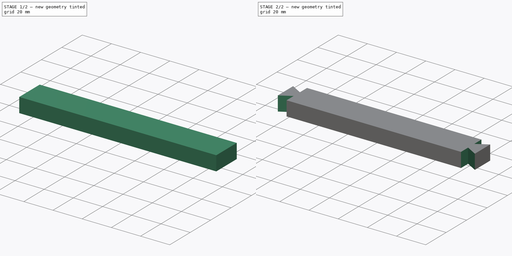
[diagram: build sequence overview — one tinted view per stage of 2, left to right]
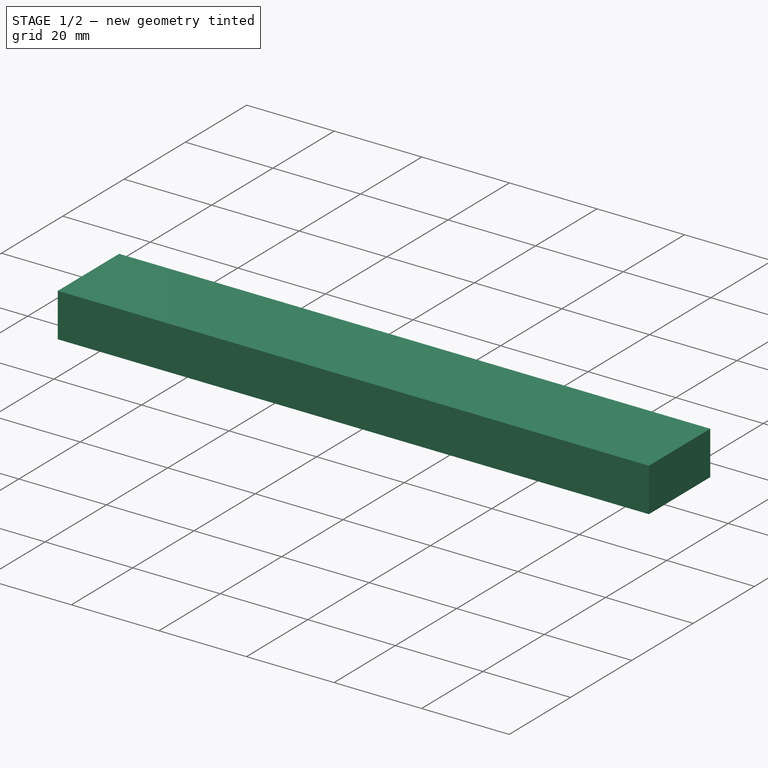
[diagram: stage 1 of 2 — iso view after this stage's code; geometry added in this stage tinted green]
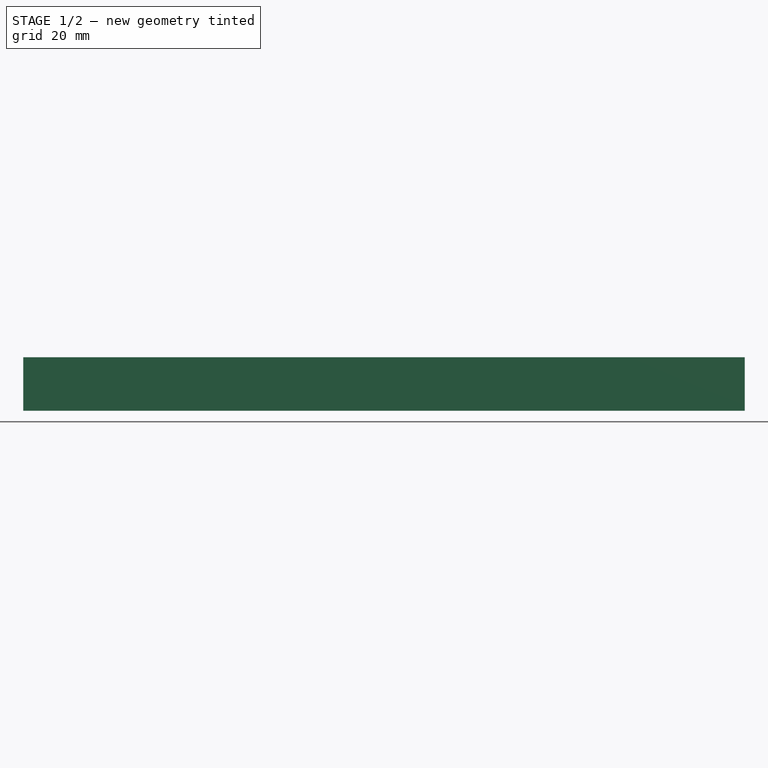
[diagram: stage 1 of 2 — front view after this stage's code; geometry added in this stage tinted green]
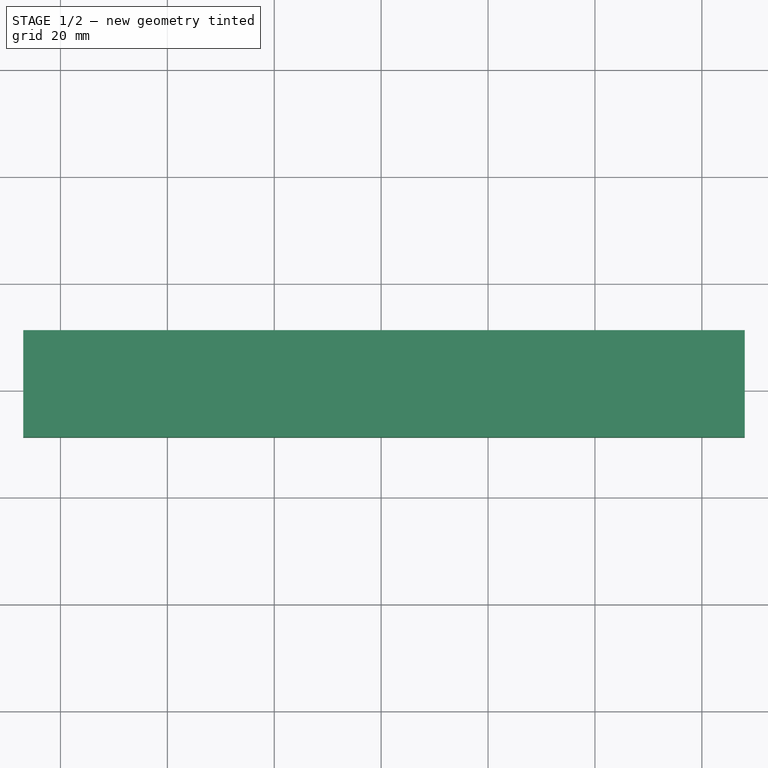
[diagram: stage 1 of 2 — top view after this stage's code; geometry added in this stage tinted green]
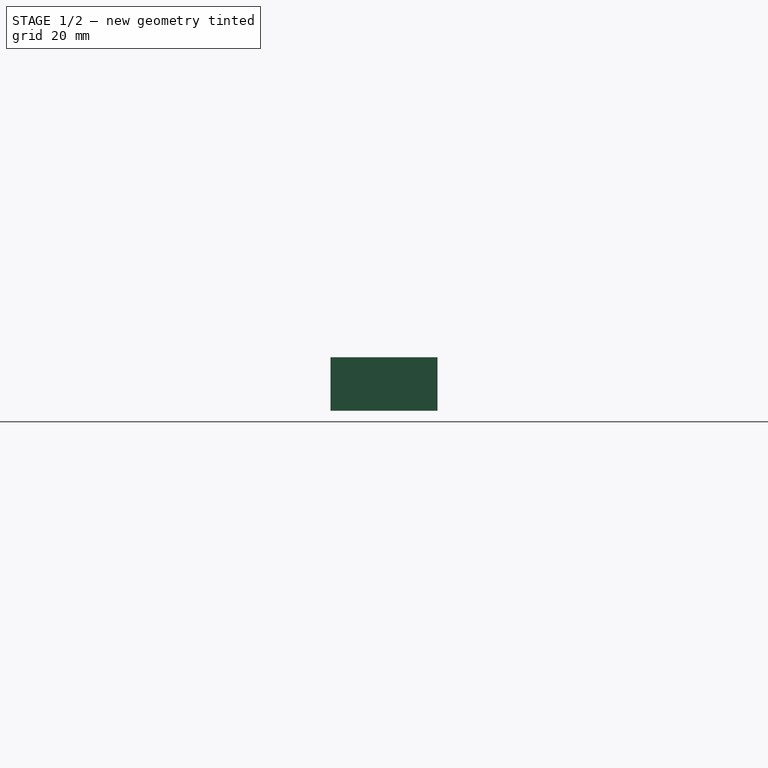
[diagram: stage 1 of 2 — right view after this stage's code; geometry added in this stage tinted green]
FCSTD DOCUMENT  (FreeCAD 0.21R33771 (Git))
Label: BeamC-0
License: All rights reserved
LicenseURL: https://en.wikipedia.org/wiki/All_rights_reserved
objects: Sketcher::SketchObject×2, PartDesign::Pad×1, PartDesign::Pocket×1, PartDesign::Body×1
note: 7 computed .brp shape members not serialized (recipe doc carries the construction recipe); baked Part::Feature solids carry a one-line shape summary decoded from their .brp

FEATURE [Sketcher::SketchObject] Sketch
  FullyConstrained = false
  MapMode = 5
  Support = -> [XY_Plane]
  sketch-geometry (4):
    g0: LineSegment StartX=-66.968 StartY=11.2225 StartZ=0 EndX=68.032 EndY=11.2225 EndZ=0
    g1: LineSegment StartX=68.032 StartY=11.2225 StartZ=0 EndX=68.032 EndY=-8.77751 EndZ=0
    g2: LineSegment StartX=68.032 StartY=-8.77751 StartZ=0 EndX=-66.968 EndY=-8.77751 EndZ=0
    g3: LineSegment StartX=-66.968 StartY=-8.77751 StartZ=0 EndX=-66.968 EndY=11.2225 EndZ=0
  constraints (10):
    c: Horizontal(g0)
    c: Coincident(g0,g1)
    c: Vertical(g1)
    c: Coincident(g1,g2)
    c: Horizontal(g2)
    c: Coincident(g2,g3)
    c: Coincident(g3,g0)
    c: Vertical(g3)
    c: DistanceY(g1,g0) = 20
    c: DistanceX(g0,g0) = 135
FEATURE [PartDesign::Pad] Pad
  Direction = (0,0,1)
  Length = 10
  Length2 = 10
  Profile = -> Sketch
  ReferenceAxis = -> Sketch [N_Axis]
  Type = 0
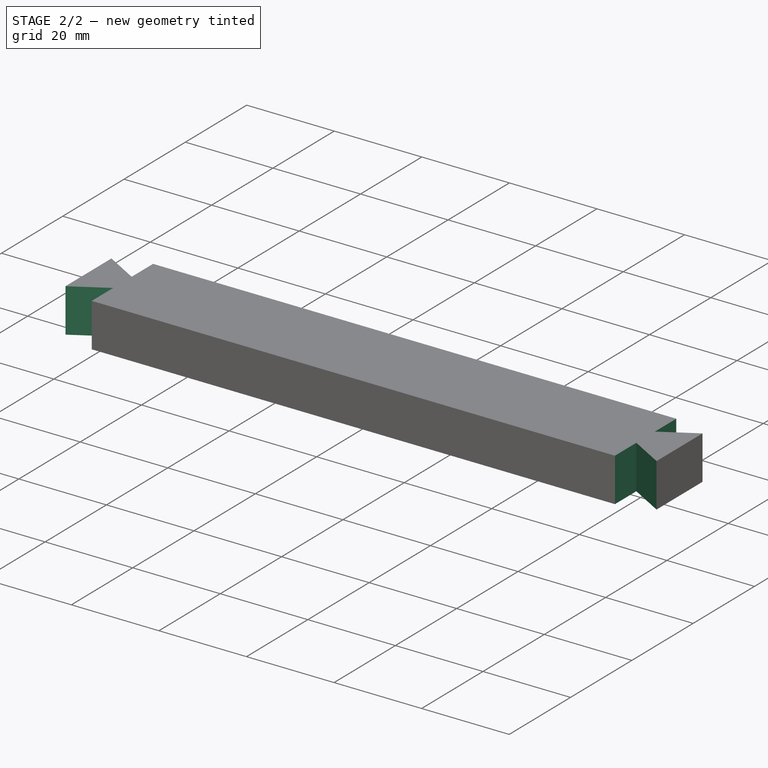
[diagram: stage 2 of 2 — iso view after this stage's code; geometry added in this stage tinted green]
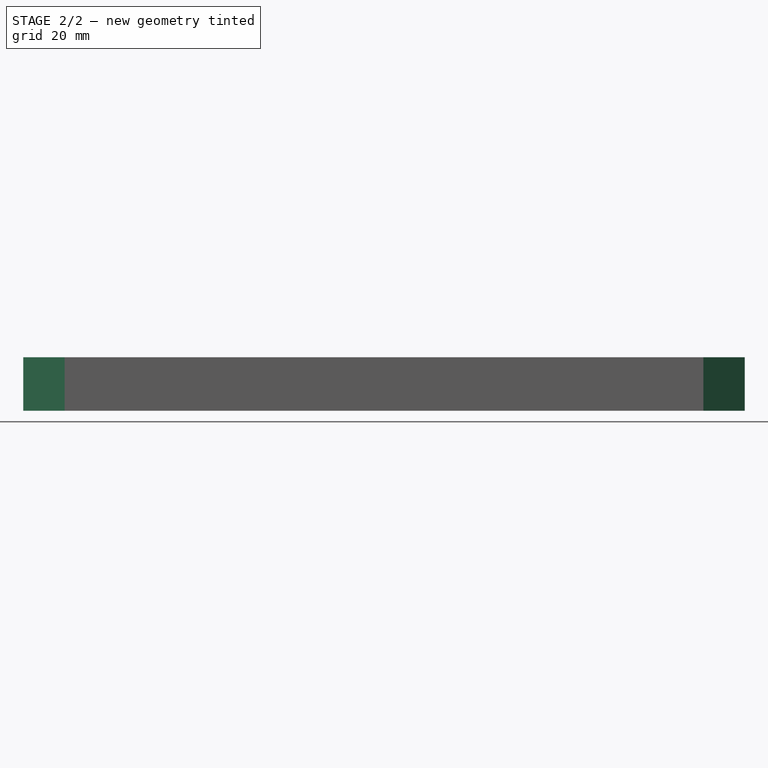
[diagram: stage 2 of 2 — front view after this stage's code; geometry added in this stage tinted green]
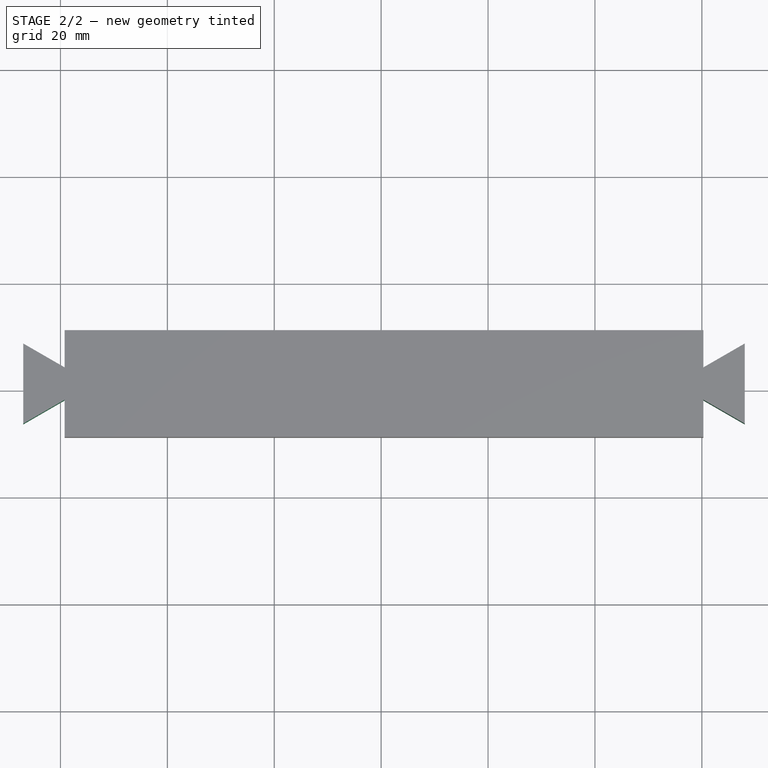
[diagram: stage 2 of 2 — top view after this stage's code; geometry added in this stage tinted green]
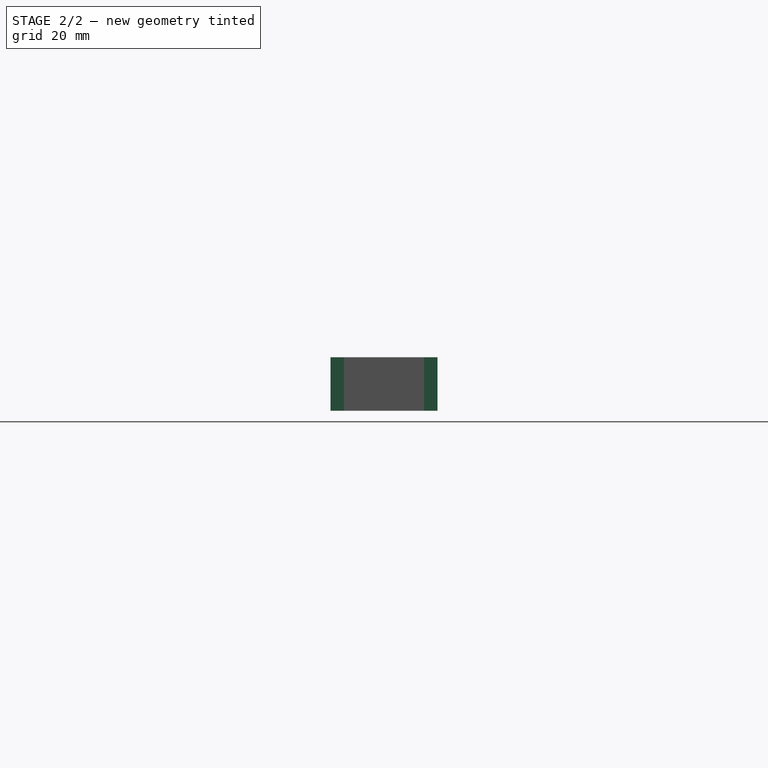
[diagram: stage 2 of 2 — right view after this stage's code; geometry added in this stage tinted green]
FEATURE [Sketcher::SketchObject] Sketch001
  ExternalGeometry = -> [Pad]
  FullyConstrained = true
  MapMode = 5
  Placement = pos=(0,0,10) rot=(0,0,1;0rad)
  Support = -> [Pad]
  sketch-geometry (16):
    g0: LineSegment StartX=-66.968 StartY=8.72249 StartZ=0 EndX=-59.218 EndY=4.24803 EndZ=0
    g1: LineSegment StartX=-59.218 StartY=4.24803 StartZ=0 EndX=-59.218 EndY=16.2225 EndZ=0
    g2: LineSegment StartX=-59.218 StartY=16.2225 StartZ=0 EndX=-71.968 EndY=16.2225 EndZ=0
    g3: LineSegment StartX=-71.968 StartY=16.2225 StartZ=0 EndX=-71.968 EndY=-13.7775 EndZ=0
    g4: LineSegment StartX=-71.968 StartY=-13.7775 StartZ=0 EndX=-59.218 EndY=-13.7775 EndZ=0
    g5: LineSegment StartX=-59.218 StartY=-13.7775 StartZ=0 EndX=-59.218 EndY=-1.80304 EndZ=0
    g6: LineSegment StartX=-59.218 StartY=-1.80304 StartZ=0 EndX=-66.968 EndY=-6.27751 EndZ=0
    g7: LineSegment StartX=-66.968 StartY=-6.27751 StartZ=0 EndX=-66.968 EndY=8.72249 EndZ=0
    g8: LineSegment StartX=68.032 StartY=8.72249 StartZ=0 EndX=60.282 EndY=4.24803 EndZ=0
    g9: LineSegment StartX=60.282 StartY=4.24803 StartZ=0 EndX=60.282 EndY=16.2225 EndZ=0
    g10: LineSegment StartX=60.282 StartY=16.2225 StartZ=0 EndX=73.032 EndY=16.2225 EndZ=0
    g11: LineSegment StartX=73.032 StartY=16.2225 StartZ=0 EndX=73.032 EndY=-13.7775 EndZ=0
    g12: LineSegment StartX=73.032 StartY=-13.7775 StartZ=0 EndX=60.282 EndY=-13.7775 EndZ=0
    g13: LineSegment StartX=60.282 StartY=-13.7775 StartZ=0 EndX=60.282 EndY=-1.80304 EndZ=0
    g14: LineSegment StartX=60.282 StartY=-1.80304 StartZ=0 EndX=68.032 EndY=-6.27751 EndZ=0
    g15: LineSegment StartX=68.032 StartY=-6.27751 StartZ=0 EndX=68.032 EndY=8.72249 EndZ=0
  constraints (48):
    c: PointOnObject(g0,g-3)
    c: Coincident(g0,g1)
    c: Vertical(g1)
    c: Coincident(g1,g2)
    c: Horizontal(g2)
    c: Coincident(g2,g3)
    c: Vertical(g3)
    c: Coincident(g3,g4)
    c: Horizontal(g4)
    c: Coincident(g4,g5)
    c: Coincident(g5,g6)
    c: Coincident(g6,g7)
    c: Coincident(g7,g0)
    c: Vertical(g7)
    c: Vertical(g5)
    c: DistanceX(g5,g0) = 0
    c: DistanceY(g3,g-3) = 5
    c: DistanceY(g-3,g2) = 5
    c: DistanceY(g0,g-3) = 2.5
    c: DistanceY(g-3,g6) = 2.5
    c: Angle(g7,g0) = 1.0472
    c: Angle(g6,g7) = 1.0472
    c: DistanceX(g6,g5) = 7.75
    c: Coincident(g8,g9)
    c: Vertical(g9)
    c: Coincident(g9,g10)
    c: Horizontal(g10)
    c: Coincident(g10,g11)
    c: Vertical(g11)
    c: Coincident(g11,g12)
    c: Horizontal(g12)
    c: Coincident(g12,g13)
    c: Vertical(g13)
    c: Coincident(g13,g14)
    c: Coincident(g14,g15)
    c: Coincident(g15,g8)
    c: Vertical(g15)
    c: PointOnObject(g8,g-4)
    c: DistanceY(g-4,g10) = 5
    c: DistanceY(g11,g-4) = 5
    c: DistanceX(g8,g13) = 0
    c: DistanceY(g8,g-4) = 2.5
    c: DistanceY(g-4,g14) = 2.5
    c: DistanceX(g13,g-4) = 7.75
    c: Angle(g15,g14) = 1.0472
    c: Angle(g8,g15) = 1.0472
    c: DistanceX(g3,g-3) = 5
    c: DistanceX(g-4,g11) = 5
FEATURE [PartDesign::Pocket] Pocket
  BaseFeature = -> Pad
  Direction = (0,0,-1)
  Length = 10
  Length2 = 5
  Profile = -> Sketch001
  ReferenceAxis = -> Sketch001 [N_Axis]
  Type = 0
FEATURE [PartDesign::Body] Body
  Group = -> [Sketch,Pad,Sketch001,Pocket]
  Origin = -> Origin
  Tip = -> Pocket
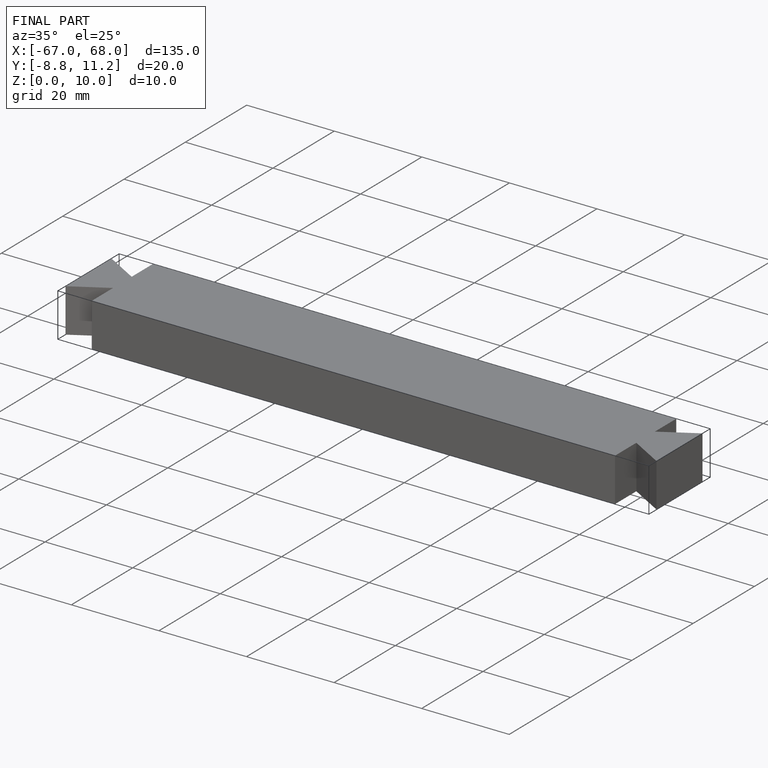
[diagram: finished part — iso view with bounding-box wireframe]
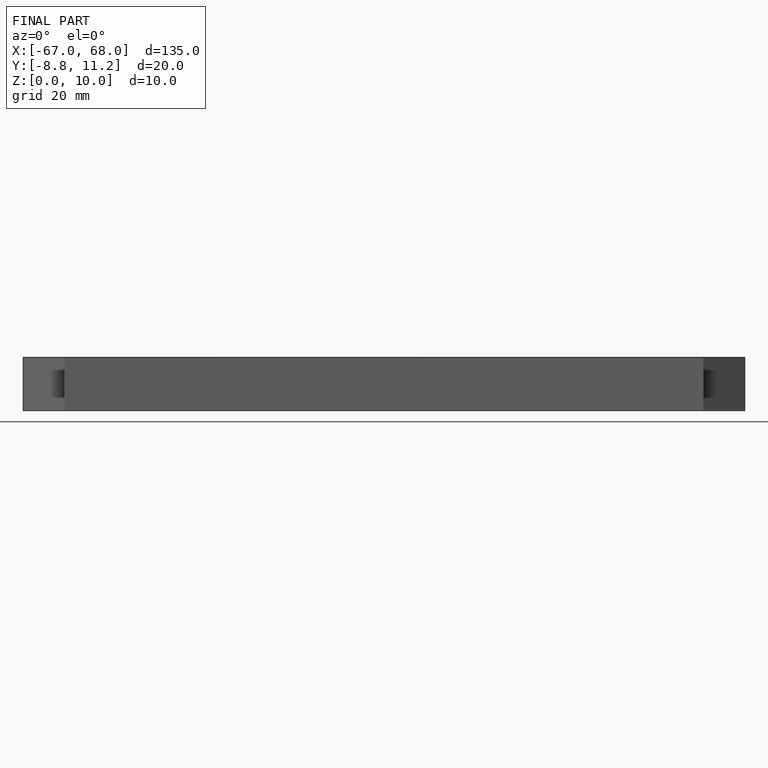
[diagram: finished part — front view with bounding-box wireframe]
